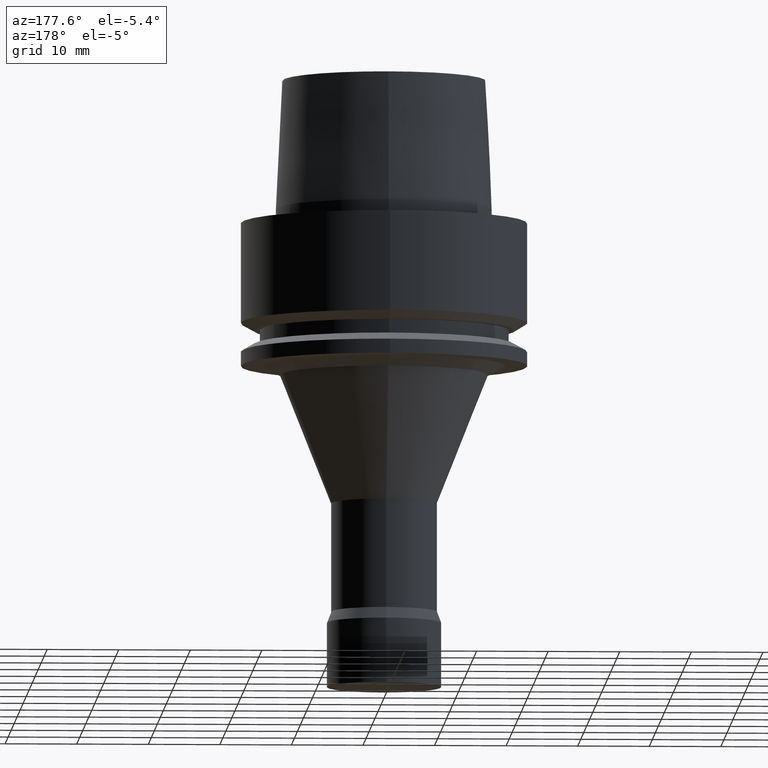
[diagram: clean part render]
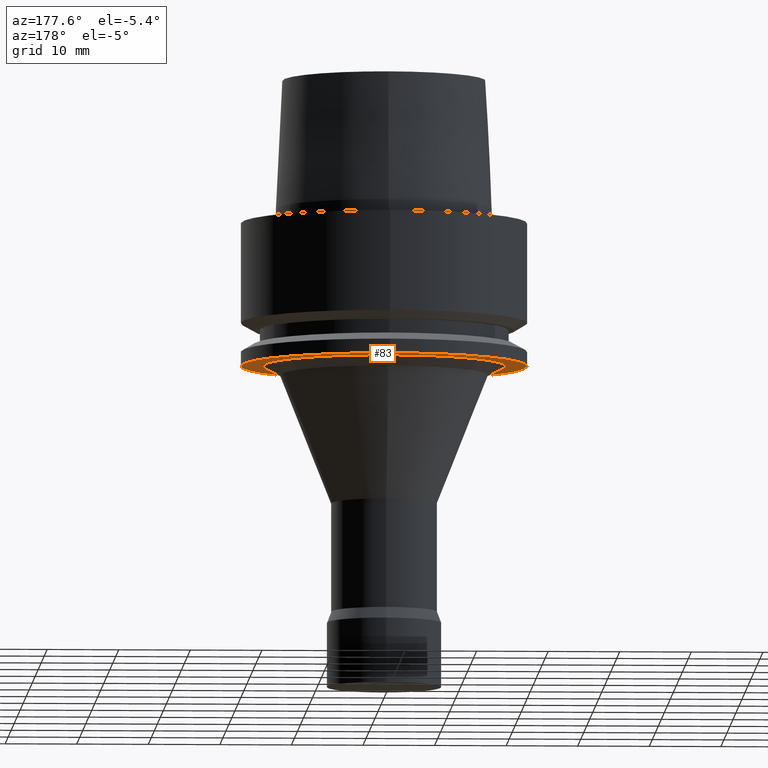
[diagram: same view with one face highlighted and labeled with its STEP entity id]
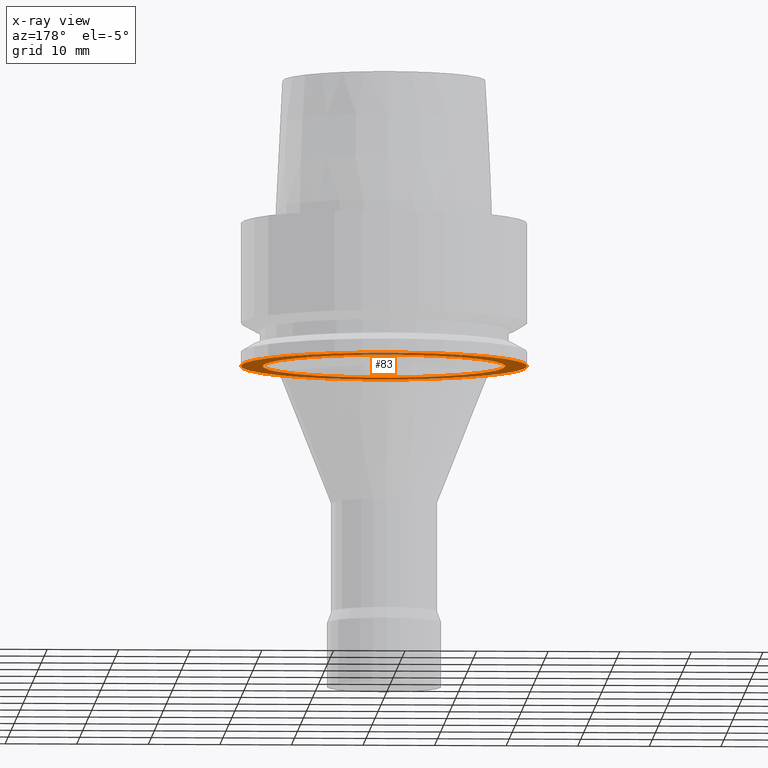
[diagram: x-ray of the same camera — body ghosted, the highlighted face saturated]
A machine part, auxiliary view. The second image highlights one B-rep face of the part: STEP entity #83.
The next image is the same camera in x-ray: the body ghosted, the highlighted face saturated — about 30% of this face is hidden behind the body in this view.
In plain terms, the highlighted planar face has unit normal (0, 0, -1).
Its self-contained STEP definition (entity closure, byte-faithful):
#83=ADVANCED_FACE('',(#118,#119),#120,.T.);
#118=FACE_BOUND('',#170,.T.);
#119=FACE_OUTER_BOUND('',#171,.T.);
#120=PLANE('',#172);
#170=EDGE_LOOP('',(#238));
#171=EDGE_LOOP('',(#239));
#172=AXIS2_PLACEMENT_3D('',#240,#241,#242);
#238=ORIENTED_EDGE('',*,*,#295,.F.);
#239=ORIENTED_EDGE('',*,*,#294,.T.);
#240=CARTESIAN_POINT('',(1.22464679914735E-015,18.48418259,-20.0));
#241=DIRECTION('',(6.12323399573677E-017,1.22464679914735E-016,-1.0));
#242=DIRECTION('',(-1.23259516440783E-032,1.0,1.22464679914735E-016));
#294=EDGE_CURVE('',#319,#319,#320,.T.);
#295=EDGE_CURVE('',#321,#321,#322,.T.);
#319=VERTEX_POINT('',#353);
#320=CIRCLE('',#354,20.0);
#321=VERTEX_POINT('',#355);
#322=CIRCLE('',#356,16.96836518);
#353=CARTESIAN_POINT('',(1.22464679914735E-015,20.0,-20.0));
#354=AXIS2_PLACEMENT_3D('',#395,#396,#397);
#355=CARTESIAN_POINT('',(1.22464679914735E-015,16.96836518,-20.0));
#356=AXIS2_PLACEMENT_3D('',#398,#399,#400);
#395=CARTESIAN_POINT('',(1.22464679914735E-015,2.44929359829471E-015,-20.0));
#396=DIRECTION('',(6.12323399573677E-017,1.22464679914735E-016,-1.0));
#397=DIRECTION('',(-1.23259516440783E-032,1.0,1.22464679914735E-016));
#398=CARTESIAN_POINT('',(1.22464679914735E-015,2.44929359829471E-015,-20.0));
#399=DIRECTION('',(6.12323399573677E-017,1.22464679914735E-016,-1.0));
#400=DIRECTION('',(-1.23259516440783E-032,1.0,1.22464679914735E-016));